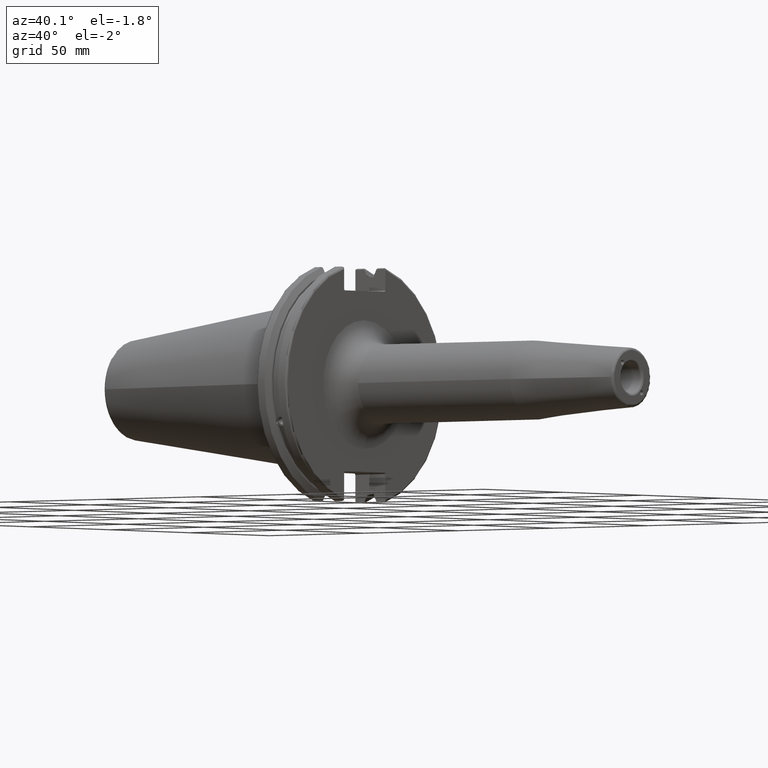
[diagram: clean part render]
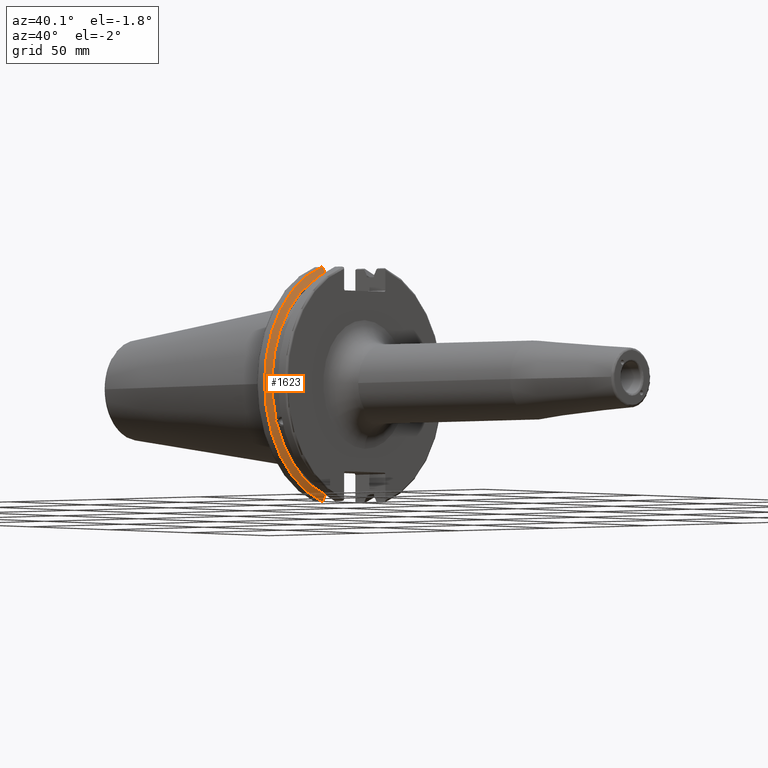
[diagram: same view with one face highlighted and labeled with its STEP entity id]
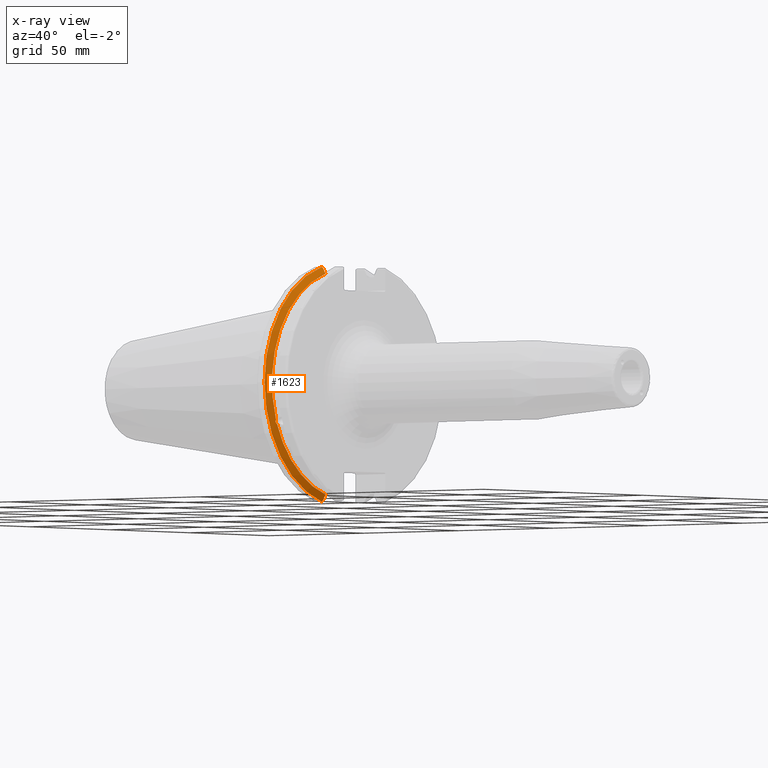
[diagram: x-ray of the same camera — body ghosted, the highlighted face saturated]
A machine part, auxiliary view. The second image highlights one B-rep face of the part: STEP entity #1623.
The next image is the same camera in x-ray: the body ghosted, the highlighted face saturated — about 0% of this face is hidden behind the body in this view.
In plain terms, the highlighted conical surface has half-angle 60 deg.
Its self-contained STEP definition (entity closure, byte-faithful):
#25=(
BOUNDED_CURVE()
B_SPLINE_CURVE(2,(#3061,#3062,#3063),.UNSPECIFIED.,.F.,.F.)
B_SPLINE_CURVE_WITH_KNOTS((3,3),(0.,0.275823910674601),.UNSPECIFIED.)
CURVE()
GEOMETRIC_REPRESENTATION_ITEM()
RATIONAL_B_SPLINE_CURVE((1.,1.00038235573593,1.00012873636487))
REPRESENTATION_ITEM('')
);
#26=(
BOUNDED_CURVE()
B_SPLINE_CURVE(2,(#3073,#3074,#3075),.UNSPECIFIED.,.F.,.F.)
B_SPLINE_CURVE_WITH_KNOTS((3,3),(0.0558332664507492,0.331657177124507),
 .UNSPECIFIED.)
CURVE()
GEOMETRIC_REPRESENTATION_ITEM()
RATIONAL_B_SPLINE_CURVE((1.00012873636807,1.00038235574544,1.))
REPRESENTATION_ITEM('')
);
#27=(
BOUNDED_CURVE()
B_SPLINE_CURVE(2,(#3108,#3109,#3110),.UNSPECIFIED.,.F.,.F.)
B_SPLINE_CURVE_WITH_KNOTS((3,3),(0.,0.0648240472897372),.UNSPECIFIED.)
CURVE()
GEOMETRIC_REPRESENTATION_ITEM()
RATIONAL_B_SPLINE_CURVE((1.,1.00011477674836,1.00019140645948))
REPRESENTATION_ITEM('')
);
#28=(
BOUNDED_CURVE()
B_SPLINE_CURVE(2,(#3116,#3117,#3118),.UNSPECIFIED.,.F.,.F.)
B_SPLINE_CURVE_WITH_KNOTS((3,3),(0.325260944932348,0.390084992222201),
 .UNSPECIFIED.)
CURVE()
GEOMETRIC_REPRESENTATION_ITEM()
RATIONAL_B_SPLINE_CURVE((1.00019140645916,1.00011477674817,1.))
REPRESENTATION_ITEM('')
);
#41=B_SPLINE_CURVE_WITH_KNOTS('',3,(#2597,#2598,#2599,#2600,#2601,#2602,
#2603,#2604,#2605,#2606,#2607,#2608,#2609,#2610),.UNSPECIFIED.,.F.,.F.,
(4,2,2,2,2,2,4),(0.426712868358719,0.441644498666906,0.48031331322313,0.518982127779354,
0.557650942335578,0.596319756891801,0.611251387199988),.UNSPECIFIED.);
#84=CONICAL_SURFACE('',#1819,47.8172386482472,1.0471975511966);
#462=FACE_OUTER_BOUND('',#576,.T.);
#576=EDGE_LOOP('',(#1506,#1507,#1508,#1509,#1510,#1511,#1512,#1513));
#617=CIRCLE('',#1722,46.4219772964944);
#641=CIRCLE('',#1773,49.2125);
#657=CIRCLE('',#1820,46.4219772964944);
#712=VERTEX_POINT('',#2594);
#713=VERTEX_POINT('',#2596);
#730=VERTEX_POINT('',#2687);
#790=VERTEX_POINT('',#3058);
#791=VERTEX_POINT('',#3060);
#794=VERTEX_POINT('',#3072);
#798=VERTEX_POINT('',#3106);
#799=VERTEX_POINT('',#3112);
#887=EDGE_CURVE('',#713,#712,#41,.T.);
#910=EDGE_CURVE('',#713,#730,#617,.T.);
#992=EDGE_CURVE('',#791,#790,#25,.T.);
#998=EDGE_CURVE('',#794,#730,#26,.T.);
#1006=EDGE_CURVE('',#798,#790,#27,.T.);
#1008=EDGE_CURVE('',#798,#799,#641,.T.);
#1009=EDGE_CURVE('',#794,#799,#28,.T.);
#1051=EDGE_CURVE('',#791,#712,#657,.T.);
#1506=ORIENTED_EDGE('',*,*,#887,.T.);
#1507=ORIENTED_EDGE('',*,*,#1051,.F.);
#1508=ORIENTED_EDGE('',*,*,#992,.T.);
#1509=ORIENTED_EDGE('',*,*,#1006,.F.);
#1510=ORIENTED_EDGE('',*,*,#1008,.T.);
#1511=ORIENTED_EDGE('',*,*,#1009,.F.);
#1512=ORIENTED_EDGE('',*,*,#998,.T.);
#1513=ORIENTED_EDGE('',*,*,#910,.F.);
#1623=ADVANCED_FACE('',(#462),#84,.T.);
#1722=AXIS2_PLACEMENT_3D('',#2688,#2007,#2008);
#1773=AXIS2_PLACEMENT_3D('',#3114,#2151,#2152);
#1819=AXIS2_PLACEMENT_3D('',#3230,#2264,#2265);
#1820=AXIS2_PLACEMENT_3D('',#3231,#2266,#2267);
#2007=DIRECTION('center_axis',(1.,0.,0.));
#2008=DIRECTION('ref_axis',(0.,0.,-1.));
#2151=DIRECTION('center_axis',(1.,0.,0.));
#2152=DIRECTION('ref_axis',(0.,0.,-1.));
#2264=DIRECTION('center_axis',(-1.,0.,0.));
#2265=DIRECTION('ref_axis',(0.,-1.,-1.22464679914735E-16));
#2266=DIRECTION('center_axis',(1.,0.,0.));
#2267=DIRECTION('ref_axis',(0.,0.,-1.));
#2594=CARTESIAN_POINT('',(9.2191,-43.9096390749305,-15.0646464421033));
#2596=CARTESIAN_POINT('',(9.2191,-43.3201030900029,-16.684383248648));
#2597=CARTESIAN_POINT('Ctrl Pts',(9.21910000000001,-43.3201030900029,-16.6843832486479));
#2598=CARTESIAN_POINT('Ctrl Pts',(9.20211843903392,-43.3613106941341,-16.6592273018006));
#2599=CARTESIAN_POINT('Ctrl Pts',(9.18608675403322,-43.4012416983557,-16.6326763251437));
#2600=CARTESIAN_POINT('Ctrl Pts',(9.13238673845037,-43.5391037343221,-16.5325130832406));
#2601=CARTESIAN_POINT('Ctrl Pts',(9.09621610663556,-43.6406982153491,-16.441180795372));
#2602=CARTESIAN_POINT('Ctrl Pts',(9.04690868251975,-43.8110833825827,-16.2291323464527));
#2603=CARTESIAN_POINT('Ctrl Pts',(9.0341,-43.8794096049168,-16.10796730316));
#2604=CARTESIAN_POINT('Ctrl Pts',(9.0341,-43.9675796948952,-15.8657219718732));
#2605=CARTESIAN_POINT('Ctrl Pts',(9.04690868251975,-43.9931221605126,-15.7289849146254));
#2606=CARTESIAN_POINT('Ctrl Pts',(9.09621610663556,-43.9989016655819,-15.4570249042867));
#2607=CARTESIAN_POINT('Ctrl Pts',(9.13238673845037,-43.9797830409458,-15.3217566390708));
#2608=CARTESIAN_POINT('Ctrl Pts',(9.18608675403322,-43.9385582852181,-15.1564111356409));
#2609=CARTESIAN_POINT('Ctrl Pts',(9.20211843903392,-43.9250360001461,-15.1104047527575));
#2610=CARTESIAN_POINT('Ctrl Pts',(9.2191,-43.9096390749305,-15.0646464421033));
#2687=CARTESIAN_POINT('',(9.2191,-12.95,-44.5791147973604));
#2688=CARTESIAN_POINT('Origin',(9.2191,0.,0.));
#3058=CARTESIAN_POINT('',(7.88638960562424,-12.95,46.9780755322918));
#3060=CARTESIAN_POINT('',(9.2191,-12.95,44.5791147973604));
#3061=CARTESIAN_POINT('Ctrl Pts',(9.2191,-12.95,44.5791147973604));
#3062=CARTESIAN_POINT('Ctrl Pts',(8.57020449055857,-12.95,45.7494966802148));
#3063=CARTESIAN_POINT('Ctrl Pts',(7.88638960562424,-12.95,46.9780755322918));
#3072=CARTESIAN_POINT('',(7.88638960562425,-12.95,-46.9780755322918));
#3073=CARTESIAN_POINT('Ctrl Pts',(7.88638960562425,-12.95,-46.9780755322918));
#3074=CARTESIAN_POINT('Ctrl Pts',(8.57020449054166,-12.95,-45.7494966802452));
#3075=CARTESIAN_POINT('Ctrl Pts',(9.2191,-12.95,-44.5791147973604));
#3106=CARTESIAN_POINT('',(7.60799096595127,-13.4317035994433,47.3440544806494));
#3108=CARTESIAN_POINT('Ctrl Pts',(7.60799096595126,-13.4317035994433,47.3440544806494));
#3109=CARTESIAN_POINT('Ctrl Pts',(7.7482689666382,-13.1896660169966,47.1601640966265));
#3110=CARTESIAN_POINT('Ctrl Pts',(7.88638960562424,-12.95,46.9780755322918));
#3112=CARTESIAN_POINT('',(7.60799096595127,-13.4317035994433,-47.3440544806494));
#3114=CARTESIAN_POINT('Origin',(7.60799096595127,0.,0.));
#3116=CARTESIAN_POINT('Ctrl Pts',(7.88638960562425,-12.95,-46.9780755322918));
#3117=CARTESIAN_POINT('Ctrl Pts',(7.74826896663813,-13.1896660169967,-47.1601640966265));
#3118=CARTESIAN_POINT('Ctrl Pts',(7.60799096595127,-13.4317035994434,-47.3440544806494));
#3230=CARTESIAN_POINT('Origin',(8.41354548297563,0.,0.));
#3231=CARTESIAN_POINT('Origin',(9.2191,0.,0.));